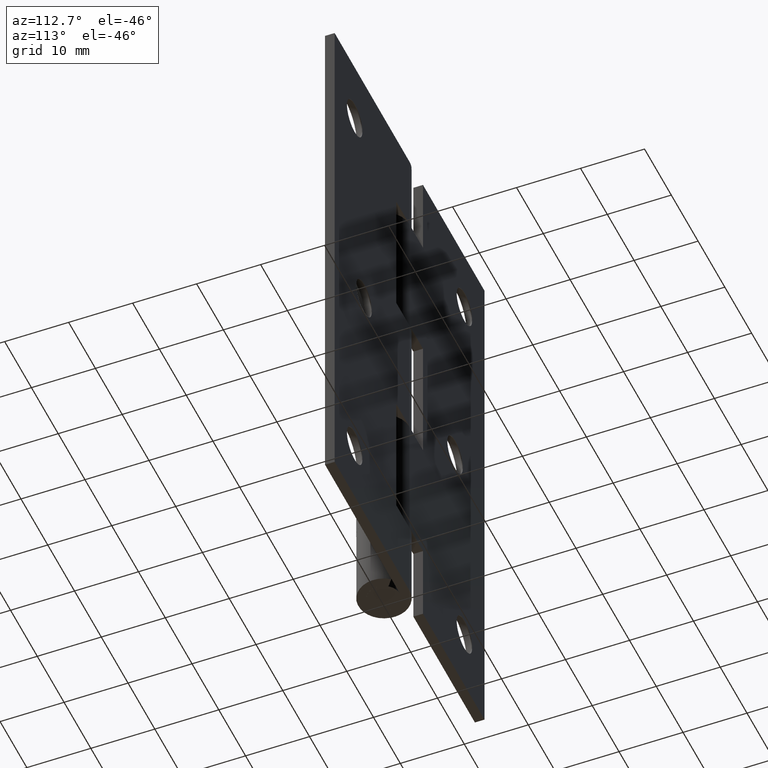
[diagram: clean part render]
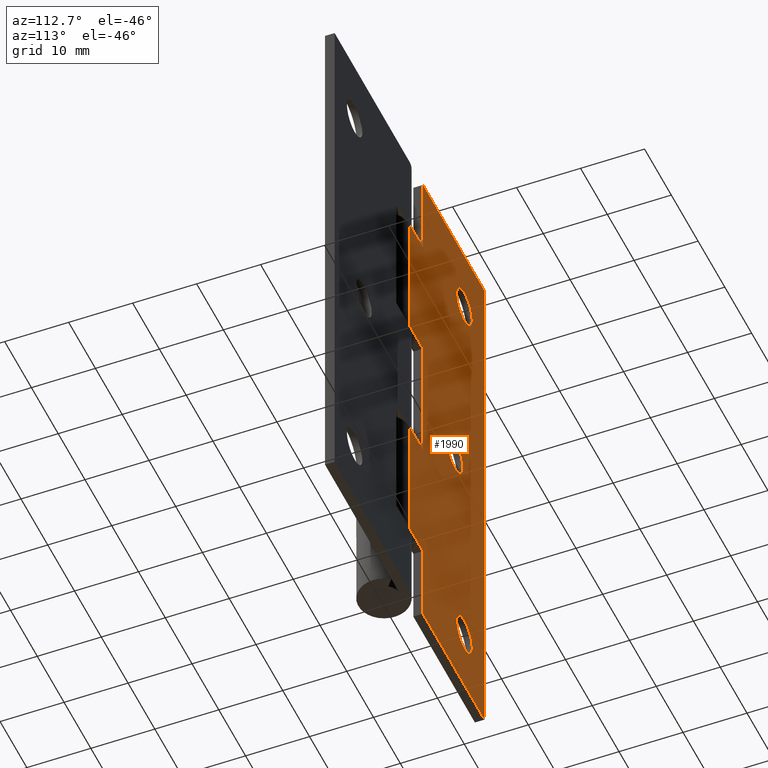
[diagram: same view with one face highlighted and labeled with its STEP entity id]
A machine part, auxiliary view. The second image highlights one B-rep face of the part: STEP entity #1990.
In plain terms, the highlighted face is a freeform B-spline surface patch.
Its self-contained STEP definition (entity closure, byte-faithful):
#330=CARTESIAN_POINT('',(-17.618939350002591,4.0,78.169116029009786));
#331=VERTEX_POINT('',#330);
#337=CARTESIAN_POINT('',(-20.500000000000000,4.0,75.600008000000003));
#338=VERTEX_POINT('',#337);
#339=CARTESIAN_POINT('',(-17.618939350002588,4.0,78.169116029009786));
#340=CARTESIAN_POINT('',(-17.914003362783202,4.0,75.600008000000017));
#341=CARTESIAN_POINT('',(-20.500000000000000,4.0,75.600008000000003));
#349=(BOUNDED_CURVE()B_SPLINE_CURVE(2,(#339,#340,#341),.UNSPECIFIED.,.F.,.U.)B_SPLINE_CURVE_WITH_KNOTS((3,3),(0.269767761036792,0.500000000000000),.UNSPECIFIED.)CURVE()GEOMETRIC_REPRESENTATION_ITEM()RATIONAL_B_SPLINE_CURVE((0.957343726281709,0.730266153821752,1.0))REPRESENTATION_ITEM(''));
#350=EDGE_CURVE('',#331,#338,#349,.T.);
#352=CARTESIAN_POINT('',(-23.394590909465940,4.0,78.322967235579881));
#353=VERTEX_POINT('',#352);
#354=CARTESIAN_POINT('',(-20.500000000000000,4.0,75.600008000000003));
#355=CARTESIAN_POINT('',(-23.228047593775514,4.000000000000000,75.600008000000003));
#356=CARTESIAN_POINT('',(-23.394590909465943,4.000000000000000,78.322967235579881));
#364=(BOUNDED_CURVE()B_SPLINE_CURVE(2,(#354,#355,#356),.UNSPECIFIED.,.F.,.U.)B_SPLINE_CURVE_WITH_KNOTS((3,3),(0.500000000000000,0.739332962226122),.UNSPECIFIED.)CURVE()GEOMETRIC_REPRESENTATION_ITEM()RATIONAL_B_SPLINE_CURVE((1.0,0.719603993301731,0.976072041639240))REPRESENTATION_ITEM(''));
#365=EDGE_CURVE('',#338,#353,#364,.T.);
#460=CARTESIAN_POINT('',(-20.500000000000000,4.0,81.400008000000000));
#461=VERTEX_POINT('',#460);
#462=CARTESIAN_POINT('',(-23.394590909465936,4.0,78.322967235579881));
#463=CARTESIAN_POINT('',(-23.400000000000002,4.000000000000001,78.411404986300809));
#464=CARTESIAN_POINT('',(-23.399999999999999,4.0,78.500007999999994));
#465=CARTESIAN_POINT('',(-23.400000000000009,4.000000000000000,81.400008000000014));
#466=CARTESIAN_POINT('',(-20.500000000000000,4.0,81.400008000000000));
#474=(BOUNDED_CURVE()B_SPLINE_CURVE(2,(#462,#463,#464,#465,#466),.UNSPECIFIED.,.F.,.U.)B_SPLINE_CURVE_WITH_KNOTS((3,2,3),(0.739332962226123,0.750000000000000,1.0),.UNSPECIFIED.)CURVE()GEOMETRIC_REPRESENTATION_ITEM()RATIONAL_B_SPLINE_CURVE((0.976072041639241,0.987502787884817,1.0,0.707106781186548,1.0))REPRESENTATION_ITEM(''));
#475=EDGE_CURVE('',#353,#461,#474,.T.);
#477=CARTESIAN_POINT('',(-20.500000000000000,4.0,81.400008000000000));
#478=CARTESIAN_POINT('',(-17.600000000000005,4.000000000000000,81.400008000000014));
#479=CARTESIAN_POINT('',(-17.600000000000001,4.0,78.500007999999994));
#480=CARTESIAN_POINT('',(-17.600000000000001,4.000000000000001,78.334019974069804));
#481=CARTESIAN_POINT('',(-17.618939350002584,4.0,78.169116029009786));
#489=(BOUNDED_CURVE()B_SPLINE_CURVE(2,(#477,#478,#479,#480,#481),.UNSPECIFIED.,.F.,.U.)B_SPLINE_CURVE_WITH_KNOTS((3,2,3),(0.0,0.250000000000000,0.269767761036792),.UNSPECIFIED.)CURVE()GEOMETRIC_REPRESENTATION_ITEM()RATIONAL_B_SPLINE_CURVE((1.0,0.707106781186548,1.0,0.976840627364795,0.957343726281709))REPRESENTATION_ITEM(''));
#490=EDGE_CURVE('',#461,#331,#489,.T.);
#658=CARTESIAN_POINT('',(-14.118939350002590,4.0,44.169116029009793));
#659=VERTEX_POINT('',#658);
#665=CARTESIAN_POINT('',(-17.0,4.0,41.600008000000003));
#666=VERTEX_POINT('',#665);
#667=CARTESIAN_POINT('',(-14.118939350002590,4.000000000000000,44.169116029009800));
#668=CARTESIAN_POINT('',(-14.414003362783200,4.0,41.600008000000010));
#669=CARTESIAN_POINT('',(-17.0,4.0,41.600008000000003));
#677=(BOUNDED_CURVE()B_SPLINE_CURVE(2,(#667,#668,#669),.UNSPECIFIED.,.F.,.U.)B_SPLINE_CURVE_WITH_KNOTS((3,3),(0.269767761036792,0.500000000000000),.UNSPECIFIED.)CURVE()GEOMETRIC_REPRESENTATION_ITEM()RATIONAL_B_SPLINE_CURVE((0.957343726281710,0.730266153821752,1.0))REPRESENTATION_ITEM(''));
#678=EDGE_CURVE('',#659,#666,#677,.T.);
#680=CARTESIAN_POINT('',(-19.894590909465940,4.0,44.322967235579881));
#681=VERTEX_POINT('',#680);
#682=CARTESIAN_POINT('',(-17.0,4.0,41.600008000000003));
#683=CARTESIAN_POINT('',(-19.728047593775511,4.000000000000000,41.600008000000003));
#684=CARTESIAN_POINT('',(-19.894590909465943,4.000000000000000,44.322967235579881));
#692=(BOUNDED_CURVE()B_SPLINE_CURVE(2,(#682,#683,#684),.UNSPECIFIED.,.F.,.U.)B_SPLINE_CURVE_WITH_KNOTS((3,3),(0.500000000000000,0.739332962226122),.UNSPECIFIED.)CURVE()GEOMETRIC_REPRESENTATION_ITEM()RATIONAL_B_SPLINE_CURVE((1.0,0.719603993301731,0.976072041639240))REPRESENTATION_ITEM(''));
#693=EDGE_CURVE('',#666,#681,#692,.T.);
#788=CARTESIAN_POINT('',(-17.0,4.0,47.400008000000000));
#789=VERTEX_POINT('',#788);
#790=CARTESIAN_POINT('',(-19.894590909465936,4.000000000000000,44.322967235579881));
#791=CARTESIAN_POINT('',(-19.900000000000006,4.000000000000000,44.411404986300802));
#792=CARTESIAN_POINT('',(-19.899999999999999,4.0,44.500008000000001));
#793=CARTESIAN_POINT('',(-19.900000000000006,4.000000000000000,47.400007999999993));
#794=CARTESIAN_POINT('',(-17.0,4.0,47.400008000000000));
#802=(BOUNDED_CURVE()B_SPLINE_CURVE(2,(#790,#791,#792,#793,#794),.UNSPECIFIED.,.F.,.U.)B_SPLINE_CURVE_WITH_KNOTS((3,2,3),(0.739332962226122,0.750000000000000,1.0),.UNSPECIFIED.)CURVE()GEOMETRIC_REPRESENTATION_ITEM()RATIONAL_B_SPLINE_CURVE((0.976072041639240,0.987502787884817,1.0,0.707106781186548,1.0))REPRESENTATION_ITEM(''));
#803=EDGE_CURVE('',#681,#789,#802,.T.);
#805=CARTESIAN_POINT('',(-17.0,4.0,47.400008000000000));
#806=CARTESIAN_POINT('',(-14.100000000000001,4.000000000000000,47.400007999999993));
#807=CARTESIAN_POINT('',(-14.100000000000000,4.0,44.500008000000001));
#808=CARTESIAN_POINT('',(-14.099999999999998,4.000000000000001,44.334019974069818));
#809=CARTESIAN_POINT('',(-14.118939350002591,4.0,44.169116029009793));
#817=(BOUNDED_CURVE()B_SPLINE_CURVE(2,(#805,#806,#807,#808,#809),.UNSPECIFIED.,.F.,.U.)B_SPLINE_CURVE_WITH_KNOTS((3,2,3),(0.0,0.250000000000000,0.269767761036792),.UNSPECIFIED.)CURVE()GEOMETRIC_REPRESENTATION_ITEM()RATIONAL_B_SPLINE_CURVE((1.0,0.707106781186548,1.0,0.976840627364796,0.957343726281710))REPRESENTATION_ITEM(''));
#818=EDGE_CURVE('',#789,#659,#817,.T.);
#986=CARTESIAN_POINT('',(-17.618939350002591,4.0,10.169108029009790));
#987=VERTEX_POINT('',#986);
#993=CARTESIAN_POINT('',(-20.500000000000000,4.0,7.600000000000001));
#994=VERTEX_POINT('',#993);
#995=CARTESIAN_POINT('',(-17.618939350002588,4.000000000000000,10.169108029009793));
#996=CARTESIAN_POINT('',(-17.914003362783195,4.000000000000000,7.600000000000001));
#997=CARTESIAN_POINT('',(-20.500000000000000,4.0,7.600000000000001));
#1005=(BOUNDED_CURVE()B_SPLINE_CURVE(2,(#995,#996,#997),.UNSPECIFIED.,.F.,.U.)B_SPLINE_CURVE_WITH_KNOTS((3,3),(0.269767761036791,0.500000000000000),.UNSPECIFIED.)CURVE()GEOMETRIC_REPRESENTATION_ITEM()RATIONAL_B_SPLINE_CURVE((0.957343726281711,0.730266153821751,1.0))REPRESENTATION_ITEM(''));
#1006=EDGE_CURVE('',#987,#994,#1005,.T.);
#1008=CARTESIAN_POINT('',(-23.394590909465940,4.0,10.322959235579880));
#1009=VERTEX_POINT('',#1008);
#1010=CARTESIAN_POINT('',(-20.500000000000000,4.0,7.600000000000001));
#1011=CARTESIAN_POINT('',(-23.228047593775514,4.000000000000000,7.600000000000000));
#1012=CARTESIAN_POINT('',(-23.394590909465943,4.000000000000000,10.322959235579876));
#1020=(BOUNDED_CURVE()B_SPLINE_CURVE(2,(#1010,#1011,#1012),.UNSPECIFIED.,.F.,.U.)B_SPLINE_CURVE_WITH_KNOTS((3,3),(0.500000000000000,0.739332962226122),.UNSPECIFIED.)CURVE()GEOMETRIC_REPRESENTATION_ITEM()RATIONAL_B_SPLINE_CURVE((1.0,0.719603993301731,0.976072041639240))REPRESENTATION_ITEM(''));
#1021=EDGE_CURVE('',#994,#1009,#1020,.T.);
#1116=CARTESIAN_POINT('',(-20.500000000000000,4.0,13.400000000000000));
#1117=VERTEX_POINT('',#1116);
#1118=CARTESIAN_POINT('',(-23.394590909465940,4.000000000000001,10.322959235579880));
#1119=CARTESIAN_POINT('',(-23.399999999999999,4.000000000000000,10.411396986300803));
#1120=CARTESIAN_POINT('',(-23.399999999999999,4.0,10.500000000000000));
#1121=CARTESIAN_POINT('',(-23.400000000000009,4.000000000000000,13.400000000000000));
#1122=CARTESIAN_POINT('',(-20.500000000000000,4.0,13.400000000000000));
#1130=(BOUNDED_CURVE()B_SPLINE_CURVE(2,(#1118,#1119,#1120,#1121,#1122),.UNSPECIFIED.,.F.,.U.)B_SPLINE_CURVE_WITH_KNOTS((3,2,3),(0.739332962226122,0.750000000000000,1.0),.UNSPECIFIED.)CURVE()GEOMETRIC_REPRESENTATION_ITEM()RATIONAL_B_SPLINE_CURVE((0.976072041639240,0.987502787884817,1.0,0.707106781186548,1.0))REPRESENTATION_ITEM(''));
#1131=EDGE_CURVE('',#1009,#1117,#1130,.T.);
#1133=CARTESIAN_POINT('',(-20.500000000000000,4.0,13.400000000000000));
#1134=CARTESIAN_POINT('',(-17.600000000000005,4.000000000000000,13.400000000000000));
#1135=CARTESIAN_POINT('',(-17.600000000000001,4.0,10.500000000000000));
#1136=CARTESIAN_POINT('',(-17.600000000000001,4.0,10.334011974069819));
#1137=CARTESIAN_POINT('',(-17.618939350002588,4.000000000000000,10.169108029009793));
#1145=(BOUNDED_CURVE()B_SPLINE_CURVE(2,(#1133,#1134,#1135,#1136,#1137),.UNSPECIFIED.,.F.,.U.)B_SPLINE_CURVE_WITH_KNOTS((3,2,3),(0.0,0.250000000000000,0.269767761036791),.UNSPECIFIED.)CURVE()GEOMETRIC_REPRESENTATION_ITEM()RATIONAL_B_SPLINE_CURVE((1.0,0.707106781186548,1.0,0.976840627364796,0.957343726281711))REPRESENTATION_ITEM(''));
#1146=EDGE_CURVE('',#1117,#987,#1145,.T.);
#1293=CARTESIAN_POINT('',(-5.0,4.0,76.000007999999994));
#1294=VERTEX_POINT('',#1293);
#1300=CARTESIAN_POINT('',(-5.0,4.0,89.000008000000008));
#1301=VERTEX_POINT('',#1300);
#1302=CARTESIAN_POINT('',(-5.0,4.0,76.000007999999994));
#1303=CARTESIAN_POINT('',(-5.0,4.0,89.000008000000008));
#1304=QUASI_UNIFORM_CURVE('',1,(#1302,#1303),.UNSPECIFIED.,.F.,.U.);
#1305=EDGE_CURVE('',#1294,#1301,#1304,.T.);
#1322=CARTESIAN_POINT('',(0.0,4.0,76.000007999999994));
#1323=VERTEX_POINT('',#1322);
#1343=CARTESIAN_POINT('',(0.0,4.0,76.000007999999994));
#1344=CARTESIAN_POINT('',(-5.0,4.0,76.000007999999994));
#1345=QUASI_UNIFORM_CURVE('',1,(#1343,#1344),.UNSPECIFIED.,.F.,.U.);
#1346=EDGE_CURVE('',#1323,#1294,#1345,.T.);
#1390=CARTESIAN_POINT('',(-5.0,4.0,34.000008000000001));
#1391=VERTEX_POINT('',#1390);
#1392=CARTESIAN_POINT('',(0.0,4.0,34.000008000000001));
#1393=VERTEX_POINT('',#1392);
#1394=CARTESIAN_POINT('',(-5.0,4.0,34.000008000000001));
#1395=CARTESIAN_POINT('',(0.0,4.0,34.000008000000001));
#1396=QUASI_UNIFORM_CURVE('',1,(#1394,#1395),.UNSPECIFIED.,.F.,.U.);
#1397=EDGE_CURVE('',#1391,#1393,#1396,.T.);
#1469=CARTESIAN_POINT('',(-5.0,4.0,55.000008000000001));
#1470=VERTEX_POINT('',#1469);
#1471=CARTESIAN_POINT('',(-5.0,4.0,55.000008000000001));
#1472=CARTESIAN_POINT('',(-5.0,4.0,34.000008000000001));
#1473=QUASI_UNIFORM_CURVE('',1,(#1471,#1472),.UNSPECIFIED.,.F.,.U.);
#1474=EDGE_CURVE('',#1470,#1391,#1473,.T.);
#1498=CARTESIAN_POINT('',(0.0,4.0,55.000008000000001));
#1499=VERTEX_POINT('',#1498);
#1553=CARTESIAN_POINT('',(0.0,4.0,55.000008000000001));
#1554=CARTESIAN_POINT('',(-5.0,4.0,55.000008000000001));
#1555=QUASI_UNIFORM_CURVE('',1,(#1553,#1554),.UNSPECIFIED.,.F.,.U.);
#1556=EDGE_CURVE('',#1499,#1470,#1555,.T.);
#1575=CARTESIAN_POINT('',(-5.0,4.0,0.0));
#1576=VERTEX_POINT('',#1575);
#1582=CARTESIAN_POINT('',(-5.0,4.0,13.0));
#1583=VERTEX_POINT('',#1582);
#1584=CARTESIAN_POINT('',(-5.0,4.0,0.0));
#1585=CARTESIAN_POINT('',(-5.0,4.0,13.0));
#1586=QUASI_UNIFORM_CURVE('',1,(#1584,#1585),.UNSPECIFIED.,.F.,.U.);
#1587=EDGE_CURVE('',#1576,#1583,#1586,.T.);
#1602=CARTESIAN_POINT('',(0.0,4.0,13.0));
#1603=VERTEX_POINT('',#1602);
#1659=CARTESIAN_POINT('',(-5.0,4.0,13.0));
#1660=CARTESIAN_POINT('',(0.0,4.0,13.0));
#1661=QUASI_UNIFORM_CURVE('',1,(#1659,#1660),.UNSPECIFIED.,.F.,.U.);
#1662=EDGE_CURVE('',#1583,#1603,#1661,.T.);
#1674=CARTESIAN_POINT('',(-28.0,4.0,89.000008000000008));
#1675=VERTEX_POINT('',#1674);
#1681=CARTESIAN_POINT('',(-28.0,4.0,0.0));
#1682=VERTEX_POINT('',#1681);
#1683=CARTESIAN_POINT('',(-28.0,4.0,0.0));
#1684=CARTESIAN_POINT('',(-28.0,4.0,89.000008000000008));
#1685=QUASI_UNIFORM_CURVE('',1,(#1683,#1684),.UNSPECIFIED.,.F.,.U.);
#1686=EDGE_CURVE('',#1682,#1675,#1685,.T.);
#1708=CARTESIAN_POINT('',(-28.0,4.0,0.0));
#1709=CARTESIAN_POINT('',(-5.0,4.0,0.0));
#1710=QUASI_UNIFORM_CURVE('',1,(#1708,#1709),.UNSPECIFIED.,.F.,.U.);
#1711=EDGE_CURVE('',#1682,#1576,#1710,.T.);
#1798=CARTESIAN_POINT('',(0.0,4.0,13.0));
#1799=CARTESIAN_POINT('',(0.0,4.0,34.000008000000001));
#1800=QUASI_UNIFORM_CURVE('',1,(#1798,#1799),.UNSPECIFIED.,.F.,.U.);
#1801=EDGE_CURVE('',#1603,#1393,#1800,.T.);
#1815=CARTESIAN_POINT('',(-28.0,4.0,89.000008000000008));
#1816=CARTESIAN_POINT('',(-5.0,4.0,89.000008000000008));
#1817=QUASI_UNIFORM_CURVE('',1,(#1815,#1816),.UNSPECIFIED.,.F.,.U.);
#1818=EDGE_CURVE('',#1675,#1301,#1817,.T.);
#1858=CARTESIAN_POINT('',(0.0,4.0,55.000008000000001));
#1859=CARTESIAN_POINT('',(0.0,4.0,76.000007999999994));
#1860=QUASI_UNIFORM_CURVE('',1,(#1858,#1859),.UNSPECIFIED.,.F.,.U.);
#1861=EDGE_CURVE('',#1499,#1323,#1860,.T.);
#1953=CARTESIAN_POINT('',(-29.398599945730570,4.0,93.445558227100719));
#1954=CARTESIAN_POINT('',(-29.398599945730570,4.0,-4.445552614266954));
#1955=CARTESIAN_POINT('',(1.398600696749086,4.0,93.445558227100719));
#1956=CARTESIAN_POINT('',(1.398600696749086,4.0,-4.445552614266954));
#1957=B_SPLINE_SURFACE_WITH_KNOTS('',1,1,((#1953,#1955),(#1954,#1956)),.UNSPECIFIED.,.F.,.F.,.U.,(2,2),(2,2),(0.0,97.891110841367677),(0.0,30.797200642479659),.UNSPECIFIED.);
#1958=ORIENTED_EDGE('',*,*,#1305,.F.);
#1959=ORIENTED_EDGE('',*,*,#1346,.F.);
#1960=ORIENTED_EDGE('',*,*,#1861,.F.);
#1961=ORIENTED_EDGE('',*,*,#1556,.T.);
#1962=ORIENTED_EDGE('',*,*,#1474,.T.);
#1963=ORIENTED_EDGE('',*,*,#1397,.T.);
#1964=ORIENTED_EDGE('',*,*,#1801,.F.);
#1965=ORIENTED_EDGE('',*,*,#1662,.F.);
#1966=ORIENTED_EDGE('',*,*,#1587,.F.);
#1967=ORIENTED_EDGE('',*,*,#1711,.F.);
#1968=ORIENTED_EDGE('',*,*,#1686,.T.);
#1969=ORIENTED_EDGE('',*,*,#1818,.T.);
#1970=EDGE_LOOP('',(#1958,#1959,#1960,#1961,#1962,#1963,#1964,#1965,#1966,#1967,#1968,#1969));
#1971=FACE_OUTER_BOUND('',#1970,.T.);
#1972=ORIENTED_EDGE('',*,*,#1021,.F.);
#1973=ORIENTED_EDGE('',*,*,#1006,.F.);
#1974=ORIENTED_EDGE('',*,*,#1146,.F.);
#1975=ORIENTED_EDGE('',*,*,#1131,.F.);
#1976=EDGE_LOOP('',(#1972,#1973,#1974,#1975));
#1977=FACE_BOUND('',#1976,.T.);
#1978=ORIENTED_EDGE('',*,*,#693,.F.);
#1979=ORIENTED_EDGE('',*,*,#678,.F.);
#1980=ORIENTED_EDGE('',*,*,#818,.F.);
#1981=ORIENTED_EDGE('',*,*,#803,.F.);
#1982=EDGE_LOOP('',(#1978,#1979,#1980,#1981));
#1983=FACE_BOUND('',#1982,.T.);
#1984=ORIENTED_EDGE('',*,*,#365,.F.);
#1985=ORIENTED_EDGE('',*,*,#350,.F.);
#1986=ORIENTED_EDGE('',*,*,#490,.F.);
#1987=ORIENTED_EDGE('',*,*,#475,.F.);
#1988=EDGE_LOOP('',(#1984,#1985,#1986,#1987));
#1989=FACE_BOUND('',#1988,.T.);
#1990=ADVANCED_FACE('',(#1971,#1977,#1983,#1989),#1957,.F.);